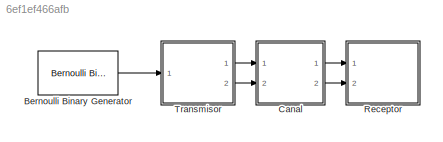
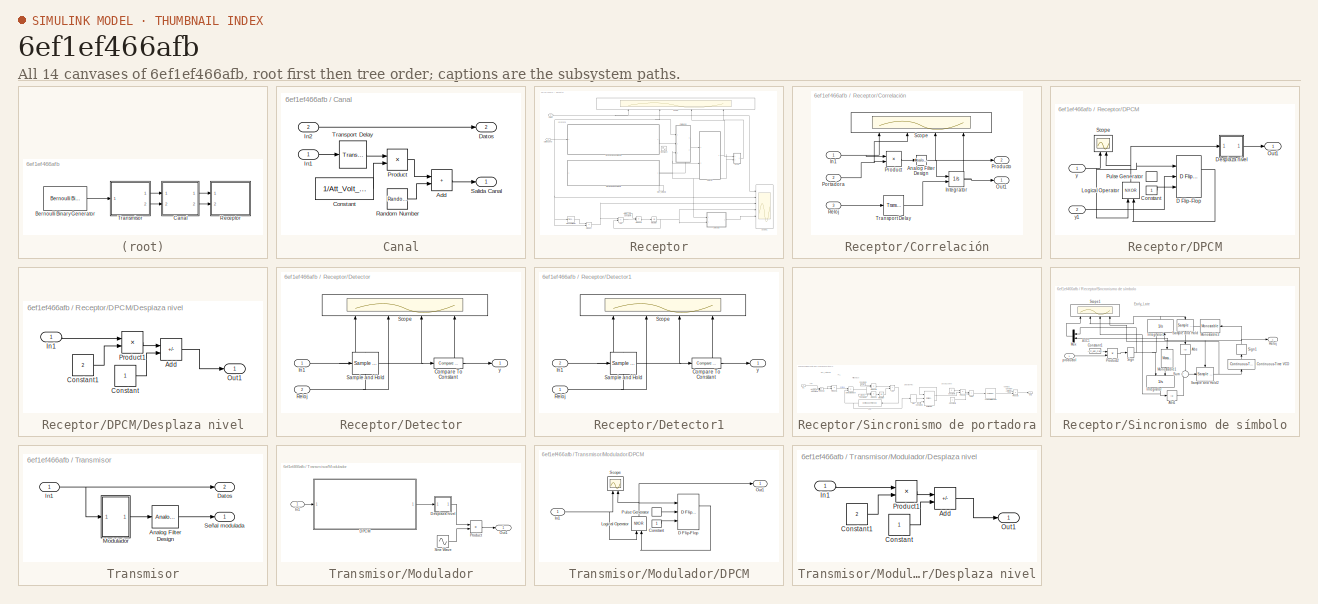
[diagram: thumbnail index - all 14 canvases of the model, root first then tree order]
MODEL slx_6ef1ef466afb
KIND model
CONFIG AbsTol = auto
CONFIG EnableMultiTasking = off
CONFIG FixedStep = 1e-8
CONFIG MaxStep = auto
CONFIG MinStep = auto
CONFIG RelTol = 1e-3
CONFIG SampleTimeConstraint = Unconstrained
CONFIG SolverName = VariableStepAuto
CONFIG StartTime = 0.0
CONFIG StopTime = 50/Rb
BLOCK [Reference] Bernoulli Binary Generator  REF=commrandsrc3/Bernoulli Binary
Generator
  Ports = [0, 1]
  SourceBlock = commrandsrc3/Bernoulli Binary\nGenerator
  SourceProductBaseCode = CM
  SourceType = Bernoulli Binary Generator
BLOCK [SubSystem] Canal
  Ports = [2, 2]
  RequestExecContextInheritance = off
BLOCK [Sum] Canal/Add
  IconShape = rectangular
  Ports = [2, 1]
BLOCK [Constant] Canal/Constant
  Value = 1/Att_Volt_Canal
BLOCK [Outport] Canal/Datos
  Port = 2
BLOCK [Inport] Canal/In1
BLOCK [Inport] Canal/In2
  Port = 2
BLOCK [Product] Canal/Product
  Ports = [2, 1]
BLOCK [RandomNumber] Canal/Random Number
  SampleTime = 1/(10000*Rb)
  Variance = Pot_Ruido
BLOCK [Outport] Canal/Salida Canal
BLOCK [TransportDelay] Canal/Transport Delay
  DelayTime = Retraso_Canal
  Ports = [1, 1]
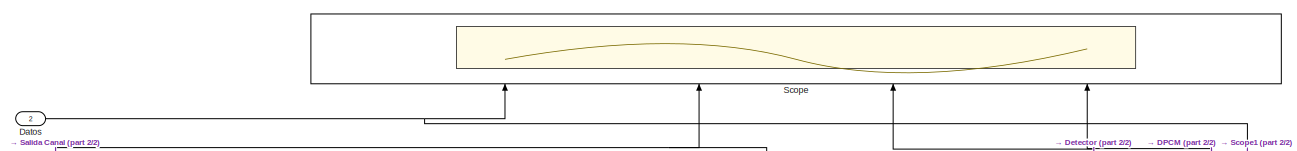
[diagram: Receptor - part 1/2, full width, top band]
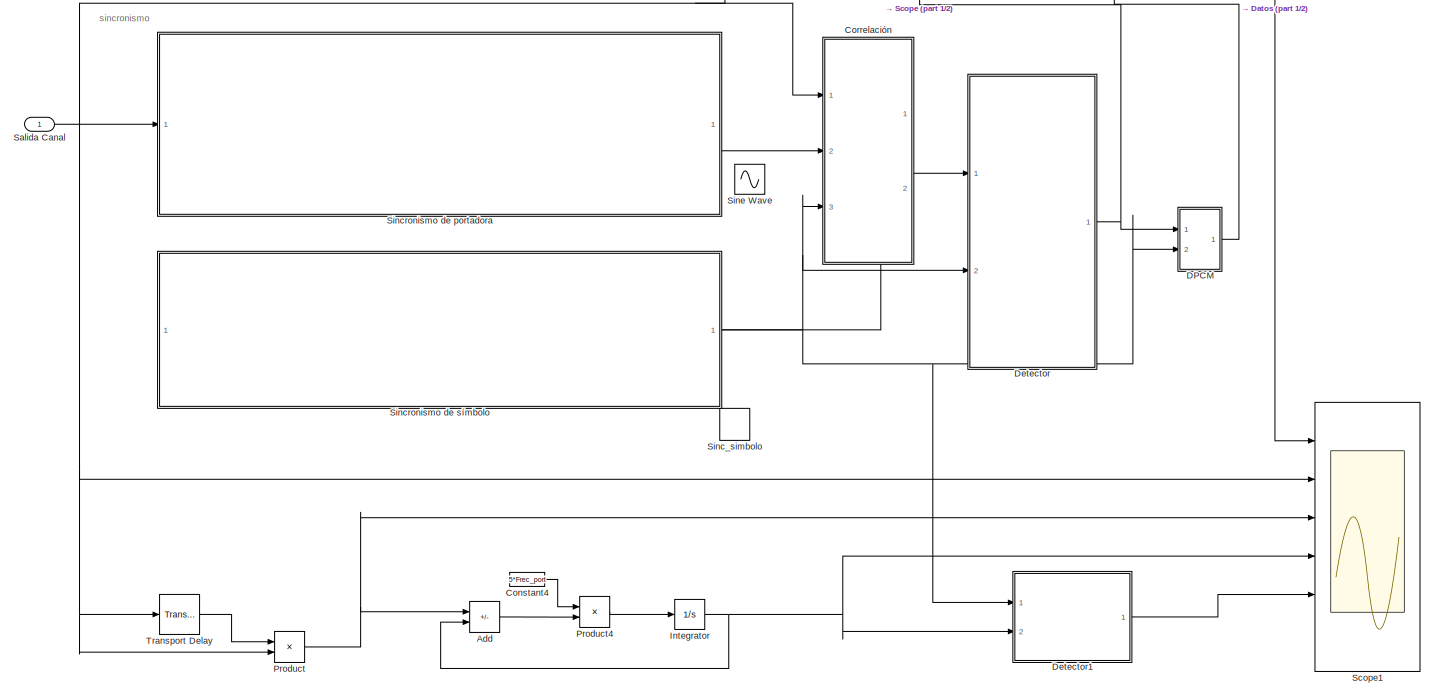
[diagram: Receptor - part 2/2, most of the canvas]
BLOCK [SubSystem] Receptor
  Ports = [2]
  RequestExecContextInheritance = off
BLOCK [Sum] Receptor/Add
  IconShape = rectangular
  Inputs = +-
  Ports = [2, 1]
BLOCK [Constant] Receptor/Constant4
  Value = 5*Frec_port
BLOCK [SubSystem] Receptor/Correlación
  NameLocation = top
  PortSchema = {"entries":[{"content":{"sides":[{"content":{"connectorIds":["In1","In2","Out2","In3"]},"type":"ConnectorPlacement.EquallySpacedRectSide","uuid":"9c9ed9ca-e8ca-44c2-a659-85a067b2e2ab"},{"content":{"connectorIds":["Out1"],"side":"RIGHT"},"type":"ConnectorPlacement.EquallySpacedRectSide","uuid":"749548a8-d339-4a18-8c47-3529cad88115"},{"content":{"connectorIds":[],"side":"TOP"},"type":"ConnectorPlace...<+403ch>
  Ports = [3, 2]
  RequestExecContextInheritance = off
BLOCK [Reference] Receptor/Correlación/Analog Filter Design  REF=dsparch4/Analog
Filter Design
  Ports = [1, 1]
  SourceBlock = dsparch4/Analog\nFilter Design
  SourceProductBaseCode = DS
  SourceType = Analog Filter Design
BLOCK [Inport] Receptor/Correlación/In1
BLOCK [Integrator] Receptor/Correlación/Integrator
  ExternalReset = rising
  Ports = [2, 1]
BLOCK [Outport] Receptor/Correlación/Out1
BLOCK [Inport] Receptor/Correlación/Portadora
  Port = 2
BLOCK [Product] Receptor/Correlación/Product
  Ports = [2, 1]
BLOCK [Outport] Receptor/Correlación/Producto
  Port = 2
BLOCK [Inport] Receptor/Correlación/Reloj
  Port = 3
BLOCK [Scope] Receptor/Correlación/Scope
  Floating = off
  NameLocation = right
  NumInputPorts = 4
  Ports = [4]
  ScopeSpecificationString = Simulink.scopes.TimeScopeBlockCfg('CurrentConfiguration', extmgr.ConfigurationSet(extmgr.Configuration('Core','General UI',true,'FigureColor',[0.831372549019608 0.815686274509804 0.784313725490196]),extmgr.Configuration('Core','Source UI',true),extmgr.Configuration('Sources','WiredSimulink',true,'DataLoggingVariableName','ScopeData4'),extmgr.Configuration('Visuals','Time Domain',true,'SerializedDi...<+4485ch>
BLOCK [TransportDelay] Receptor/Correlación/Transport Delay
  DelayTime = 1e-9
  Ports = [1, 1]
BLOCK [SubSystem] Receptor/DPCM
  Ports = [2, 1]
  RequestExecContextInheritance = off
BLOCK [Constant] Receptor/DPCM/Constant
BLOCK [Reference] Receptor/DPCM/D Flip-Flop  REF=simulink_extras/Flip Flops/D Flip-Flop
  Ports = [3, 2]
  SourceBlock = simulink_extras/Flip Flops/D Flip-Flop
  SourceProductBaseCode = SL
  SourceType = DFlipFlop
BLOCK [SubSystem] Receptor/DPCM/Desplaza nivel
  Commented = through
  Ports = [1, 1]
  RequestExecContextInheritance = off
BLOCK [Sum] Receptor/DPCM/Desplaza nivel/Add
  IconShape = rectangular
  Inputs = +-
  Ports = [2, 1]
BLOCK [Constant] Receptor/DPCM/Desplaza nivel/Constant
BLOCK [Constant] Receptor/DPCM/Desplaza nivel/Constant1
  Value = 2
BLOCK [Inport] Receptor/DPCM/Desplaza nivel/In1
BLOCK [Outport] Receptor/DPCM/Desplaza nivel/Out1
BLOCK [Product] Receptor/DPCM/Desplaza nivel/Product1
  Ports = [2, 1]
BLOCK [Logic] Receptor/DPCM/Logical Operator
  AllPortsSameDT = off
  NameLocation = right
  Operator = NXOR
  OutDataTypeStr = boolean
  Ports = [2, 1]
BLOCK [Outport] Receptor/DPCM/Out1
BLOCK [DiscretePulseGenerator] Receptor/DPCM/Pulse Generator
  Period = Tb
  Ports = [0, 1]
  PulseType = Time based
BLOCK [Scope] Receptor/DPCM/Scope
  Floating = off
  NameLocation = right
  NumInputPorts = 2
  Ports = [2]
  ScopeSpecificationString = Simulink.scopes.TimeScopeBlockCfg('CurrentConfiguration', extmgr.ConfigurationSet(extmgr.Configuration('Core','General UI',true),extmgr.Configuration('Core','Source UI',true),extmgr.Configuration('Sources','WiredSimulink',true,'DataLoggingVariableName','ScopeData1'),extmgr.Configuration('Visuals','Time Domain',true,'SerializedDisplays',{struct('MinYLimReal','-0.125','MaxYLimReal','1.125','YLabelRe...<+2470ch>
BLOCK [Inport] Receptor/DPCM/y
BLOCK [Inport] Receptor/DPCM/y1
  Port = 2
BLOCK [Inport] Receptor/Datos
  Port = 2
BLOCK [SubSystem] Receptor/Detector
  Ports = [2, 1]
  RequestExecContextInheritance = off
BLOCK [Reference] Receptor/Detector/Compare To Constant  REF=simulink/Logic and Bit
Operations/Compare
To Constant
  Ports = [1, 1]
  SourceBlock = simulink/Logic and Bit\nOperations/Compare\nTo Constant
  SourceProductBaseCode = SL
  SourceType = Compare To Constant
BLOCK [Inport] Receptor/Detector/In1
BLOCK [Inport] Receptor/Detector/Reloj
  Port = 2
BLOCK [Reference] Receptor/Detector/Sample and Hold  REF=dspsigops/Sample
and Hold
  NameLocation = top
  Ports = [1, 1, 0, 1]
  SourceBlock = dspsigops/Sample\nand Hold
  SourceProductBaseCode = DS
  SourceType = Sample and Hold
BLOCK [Scope] Receptor/Detector/Scope
  Floating = off
  NameLocation = right
  NumInputPorts = 4
  Ports = [4]
  ScopeSpecificationString = Simulink.scopes.TimeScopeBlockCfg('CurrentConfiguration', extmgr.ConfigurationSet(extmgr.Configuration('Core','General UI',true,'FigureColor',[0.831372549019608 0.815686274509804 0.784313725490196]),extmgr.Configuration('Core','Source UI',true),extmgr.Configuration('Sources','WiredSimulink',true,'DataLoggingVariableName','ScopeData5'),extmgr.Configuration('Visuals','Time Domain',true,'SerializedDi...<+4149ch>
BLOCK [Outport] Receptor/Detector/y
BLOCK [SubSystem] Receptor/Detector1
  Ports = [2, 1]
  RequestExecContextInheritance = off
BLOCK [Reference] Receptor/Detector1/Compare To Constant  REF=simulink/Logic and Bit
Operations/Compare
To Constant
  Ports = [1, 1]
  SourceBlock = simulink/Logic and Bit\nOperations/Compare\nTo Constant
  SourceProductBaseCode = SL
  SourceType = Compare To Constant
BLOCK [Inport] Receptor/Detector1/In1
  Port = 2
BLOCK [Inport] Receptor/Detector1/Reloj
BLOCK [Reference] Receptor/Detector1/Sample and Hold  REF=dspsigops/Sample
and Hold
  NameLocation = top
  Ports = [1, 1, 0, 1]
  SourceBlock = dspsigops/Sample\nand Hold
  SourceProductBaseCode = DS
  SourceType = Sample and Hold
BLOCK [Scope] Receptor/Detector1/Scope
  Floating = off
  NameLocation = right
  NumInputPorts = 4
  Ports = [4]
  ScopeSpecificationString = Simulink.scopes.TimeScopeBlockCfg('CurrentConfiguration', extmgr.ConfigurationSet(extmgr.Configuration('Core','General UI',true,'FigureColor',[0.831372549019608 0.815686274509804 0.784313725490196]),extmgr.Configuration('Core','Source UI',true),extmgr.Configuration('Sources','WiredSimulink',true,'DataLoggingVariableName','ScopeData5'),extmgr.Configuration('Visuals','Time Domain',true,'SerializedDi...<+4137ch>
BLOCK [Outport] Receptor/Detector1/y
BLOCK [Integrator] Receptor/Integrator
  Ports = [1, 1]
BLOCK [Product] Receptor/Product
  Ports = [2, 1]
BLOCK [Product] Receptor/Product4
  Ports = [2, 1]
BLOCK [Inport] Receptor/Salida Canal
BLOCK [Scope] Receptor/Scope
  Floating = off
  NameLocation = right
  NumInputPorts = 4
  Ports = [4]
  ScopeSpecificationString = Simulink.scopes.TimeScopeBlockCfg('CurrentConfiguration', extmgr.ConfigurationSet(extmgr.Configuration('Core','General UI',true,'FigureColor',[0.831372549019608 0.815686274509804 0.784313725490196]),extmgr.Configuration('Core','Source UI',true),extmgr.Configuration('Sources','WiredSimulink',true,'DataLoggingVariableName','ScopeData2'),extmgr.Configuration('Visuals','Time Domain',true,'SerializedDi...<+4321ch>
BLOCK [Scope] Receptor/Scope1
  Floating = off
  NumInputPorts = 6
  Ports = [6]
  ScopeSpecificationString = Simulink.scopes.TimeScopeBlockCfg('CurrentConfiguration', extmgr.ConfigurationSet(extmgr.Configuration('Core','General UI',true),extmgr.Configuration('Core','Source UI',true),extmgr.Configuration('Sources','WiredSimulink',true,'DataLoggingVariableName','ScopeData1'),extmgr.Configuration('Visuals','Time Domain',true,'SerializedDisplays',{struct('MinYLimReal','-0.125','MaxYLimReal','1.125','YLabelRe...<+6262ch>
BLOCK [DiscretePulseGenerator] Receptor/Sinc_simbolo
  Amplitude = Amplitud
  Period = 1/Rb
  Ports = [0, 1]
  PulseType = Time based
  PulseWidth = 50
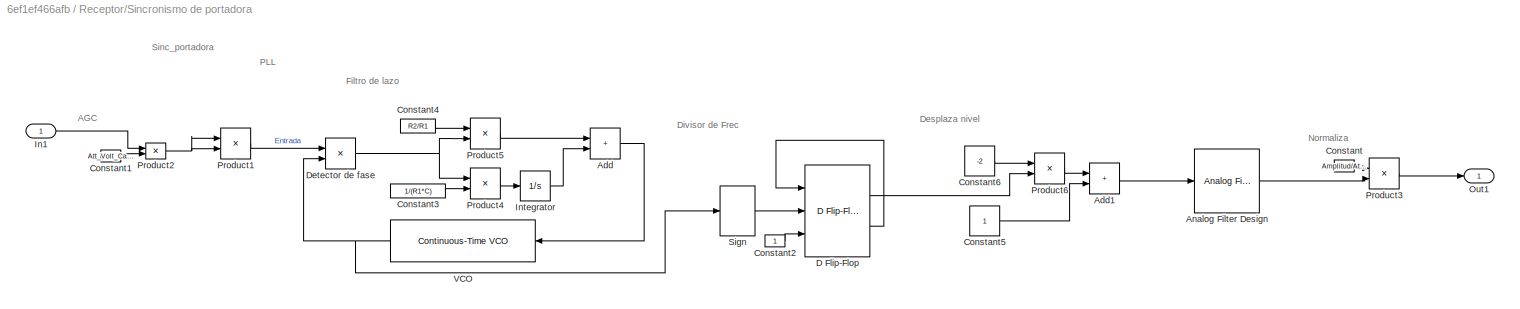
BLOCK [SubSystem] Receptor/Sincronismo de portadora
  Ports = [1, 1]
  RequestExecContextInheritance = off
BLOCK [Reference] Receptor/Sincronismo de portadora/ VCO  REF=commsynccomp2/Continuous-Time
VCO
  NameLocation = top
  Ports = [1, 1]
  SourceBlock = commsynccomp2/Continuous-Time\nVCO
  SourceProductBaseCode = CM
  SourceType = Continuous-Time VCO
BLOCK [Sum] Receptor/Sincronismo de portadora/Add
  IconShape = rectangular
  Ports = [2, 1]
BLOCK [Sum] Receptor/Sincronismo de portadora/Add1
  IconShape = rectangular
  Ports = [2, 1]
BLOCK [Reference] Receptor/Sincronismo de portadora/Analog Filter Design  REF=dsparch4/Analog
Filter Design
  Ports = [1, 1]
  SourceBlock = dsparch4/Analog\nFilter Design
  SourceProductBaseCode = DS
  SourceType = Analog Filter Design
BLOCK [Constant] Receptor/Sincronismo de portadora/Constant
  Value = Amplitud/Att_Volt_Canal
BLOCK [Constant] Receptor/Sincronismo de portadora/Constant1
  Value = Att_Volt_Canal/Amplitud
BLOCK [Constant] Receptor/Sincronismo de portadora/Constant2
BLOCK [Constant] Receptor/Sincronismo de portadora/Constant3
  Value = 1/(R1*C)
BLOCK [Constant] Receptor/Sincronismo de portadora/Constant4
  Value = R2/R1
BLOCK [Constant] Receptor/Sincronismo de portadora/Constant5
BLOCK [Constant] Receptor/Sincronismo de portadora/Constant6
  Value = -2
BLOCK [Reference] Receptor/Sincronismo de portadora/D Flip-Flop  REF=simulink_extras/Flip Flops/D Flip-Flop
  Ports = [3, 2]
  SourceBlock = simulink_extras/Flip Flops/D Flip-Flop
  SourceProductBaseCode = SL
  SourceType = DFlipFlop
BLOCK [Product] Receptor/Sincronismo de portadora/Detector de fase
  Ports = [2, 1]
BLOCK [Inport] Receptor/Sincronismo de portadora/In1
BLOCK [Integrator] Receptor/Sincronismo de portadora/Integrator
  Ports = [1, 1]
BLOCK [Outport] Receptor/Sincronismo de portadora/Out1
BLOCK [Product] Receptor/Sincronismo de portadora/Product1
  Ports = [2, 1]
BLOCK [Product] Receptor/Sincronismo de portadora/Product2
  Ports = [2, 1]
BLOCK [Product] Receptor/Sincronismo de portadora/Product3
  Ports = [2, 1]
BLOCK [Product] Receptor/Sincronismo de portadora/Product4
  Ports = [2, 1]
BLOCK [Product] Receptor/Sincronismo de portadora/Product5
  Ports = [2, 1]
BLOCK [Product] Receptor/Sincronismo de portadora/Product6
  Ports = [2, 1]
BLOCK [Signum] Receptor/Sincronismo de portadora/Sign
BLOCK [SubSystem] Receptor/Sincronismo de símbolo
  PortSchema = {"entries":[{"content":{"sides":[{"content":{"connectorIds":[]},"type":"ConnectorPlacement.EquallySpacedRectSide","uuid":"93994b0c-b2cb-4331-9695-4cda4bbb6019"},{"content":{"connectorIds":["In1","Out1"],"side":"RIGHT"},"type":"ConnectorPlacement.EquallySpacedRectSide","uuid":"b8064540-0ede-4985-840d-1e59709fa35b"},{"content":{"connectorIds":[],"side":"TOP"},"type":"ConnectorPlacement.EquallySpaced...<+241ch>
  Ports = [1, 1]
  RequestExecContextInheritance = off
BLOCK [Abs] Receptor/Sincronismo de símbolo/Abs
  NameLocation = right
  SaturateOnIntegerOverflow = off
BLOCK [Abs] Receptor/Sincronismo de símbolo/Abs1
  SaturateOnIntegerOverflow = off
BLOCK [Constant] Receptor/Sincronismo de símbolo/Constant1
  Value = Att_pot_Canal/(Amplitud^2)
BLOCK [Reference] Receptor/Sincronismo de símbolo/Continuous-Time VCO  REF=commsynccomp2/Continuous-Time
VCO
  NameLocation = left
  Ports = [1, 1]
  SourceBlock = commsynccomp2/Continuous-Time\nVCO
  SourceProductBaseCode = CM
  SourceType = Continuous-Time VCO
BLOCK [Integrator] Receptor/Sincronismo de símbolo/Integrator
  ExternalReset = falling
  LowerSaturationLimit = -0.7e-4
  NameLocation = left
  Ports = [2, 1]
  UpperSaturationLimit = 0.7e-4
BLOCK [Integrator] Receptor/Sincronismo de símbolo/Integrator1
  ExternalReset = rising
  LowerSaturationLimit = -0.7e-4
  NameLocation = right
  Ports = [2, 1]
  UpperSaturationLimit = 0.7e-4
BLOCK [Reference] Receptor/Sincronismo de símbolo/Monostable1  REF=powerlib_extras/Control 
Blocks/Monostable
  NameLocation = left
  Ports = [1, 1]
  SourceBlock = powerlib_extras/Control \nBlocks/Monostable
  SourceProductBaseCode = PS
  SourceType = Monostable Flip-Flop
BLOCK [Reference] Receptor/Sincronismo de símbolo/Monostable3  REF=powerlib_extras/Control 
Blocks/Monostable
  Ports = [1, 1]
  SourceBlock = powerlib_extras/Control \nBlocks/Monostable
  SourceProductBaseCode = PS
  SourceType = Monostable Flip-Flop
BLOCK [Mux] Receptor/Sincronismo de símbolo/Mux
  DisplayOption = bar
  Inputs = 2
  Ports = [2, 1]
BLOCK [Product] Receptor/Sincronismo de símbolo/Product2
  Ports = [2, 1]
BLOCK [Outport] Receptor/Sincronismo de símbolo/Reloj
BLOCK [Reference] Receptor/Sincronismo de símbolo/Sample and Hold  REF=dspsigops/Sample
and Hold
  NameLocation = left
  Ports = [1, 1, 0, 1]
  SourceBlock = dspsigops/Sample\nand Hold
  SourceProductBaseCode = DS
  SourceType = Sample and Hold
BLOCK [Reference] Receptor/Sincronismo de símbolo/Sample and Hold2  REF=dspsigops/Sample
and Hold
  Ports = [1, 1, 0, 1]
  SourceBlock = dspsigops/Sample\nand Hold
  SourceProductBaseCode = DS
  SourceType = Sample and Hold
BLOCK [Scope] Receptor/Sincronismo de símbolo/Scope1
  Floating = off
  NameLocation = right
  NumInputPorts = 4
  Ports = [4]
  ScopeSpecificationString = Simulink.scopes.TimeScopeBlockCfg('CurrentConfiguration', extmgr.ConfigurationSet(extmgr.Configuration('Core','General UI',true,'FigureColor',[0.831372549019608 0.815686274509804 0.784313725490196]),extmgr.Configuration('Core','Source UI',true),extmgr.Configuration('Sources','WiredSimulink',true,'DataLoggingVariableName','ScopeData1'),extmgr.Configuration('Visuals','Time Domain',true,'SerializedDi...<+4414ch>
BLOCK [Signum] Receptor/Sincronismo de símbolo/Sign
BLOCK [Signum] Receptor/Sincronismo de símbolo/Sign1
  NameLocation = right
BLOCK [Sum] Receptor/Sincronismo de símbolo/Sum
  Inputs = +-
  Ports = [2, 1]
BLOCK [Inport] Receptor/Sincronismo de símbolo/productol
BLOCK [Sin] Receptor/Sine Wave
  Amplitude = Amplitud/Att_Volt_Canal
  Frequency = 2*pi*Frec_port
  Ports = [0, 1]
  SampleTime = 0
BLOCK [TransportDelay] Receptor/Transport Delay
  DelayTime = Tb
  Ports = [1, 1]
BLOCK [SubSystem] Transmisor
  Ports = [1, 2]
  RequestExecContextInheritance = off
BLOCK [Reference] Transmisor/Analog Filter Design  REF=dsparch4/Analog
Filter Design
  Ports = [1, 1]
  SourceBlock = dsparch4/Analog\nFilter Design
  SourceProductBaseCode = DS
  SourceType = Analog Filter Design
BLOCK [Outport] Transmisor/Datos
  Port = 2
BLOCK [Inport] Transmisor/In1
BLOCK [SubSystem] Transmisor/Modulador
  Ports = [1, 1]
  RequestExecContextInheritance = off
BLOCK [SubSystem] Transmisor/Modulador/DPCM
  Ports = [1, 1]
  RequestExecContextInheritance = off
BLOCK [Constant] Transmisor/Modulador/DPCM/Constant
BLOCK [Reference] Transmisor/Modulador/DPCM/D Flip-Flop  REF=simulink_extras/Flip Flops/D Flip-Flop
  Ports = [3, 2]
  SourceBlock = simulink_extras/Flip Flops/D Flip-Flop
  SourceProductBaseCode = SL
  SourceType = DFlipFlop
BLOCK [Inport] Transmisor/Modulador/DPCM/In1
BLOCK [Logic] Transmisor/Modulador/DPCM/Logical Operator
  AllPortsSameDT = off
  NameLocation = right
  Operator = NXOR
  OutDataTypeStr = boolean
  Ports = [2, 1]
BLOCK [Outport] Transmisor/Modulador/DPCM/Out1
BLOCK [DiscretePulseGenerator] Transmisor/Modulador/DPCM/Pulse Generator
  Period = Tb
  Ports = [0, 1]
  PulseType = Time based
  PulseWidth = 50
BLOCK [Scope] Transmisor/Modulador/DPCM/Scope
  Floating = off
  NameLocation = right
  NumInputPorts = 2
  Ports = [2]
  ScopeSpecificationString = Simulink.scopes.TimeScopeBlockCfg('CurrentConfiguration', extmgr.ConfigurationSet(extmgr.Configuration('Core','General UI',true),extmgr.Configuration('Core','Source UI',true),extmgr.Configuration('Sources','WiredSimulink',true,'DataLoggingVariableName','ScopeData1'),extmgr.Configuration('Visuals','Time Domain',true,'SerializedDisplays',{struct('MinYLimReal','-0.125','MaxYLimReal','1.125','YLabelRe...<+2478ch>
BLOCK [SubSystem] Transmisor/Modulador/Desplaza nivel
  Ports = [1, 1]
  RequestExecContextInheritance = off
BLOCK [Sum] Transmisor/Modulador/Desplaza nivel/Add
  IconShape = rectangular
  Inputs = +-
  Ports = [2, 1]
BLOCK [Constant] Transmisor/Modulador/Desplaza nivel/Constant
BLOCK [Constant] Transmisor/Modulador/Desplaza nivel/Constant1
  Value = 2
BLOCK [Inport] Transmisor/Modulador/Desplaza nivel/In1
BLOCK [Outport] Transmisor/Modulador/Desplaza nivel/Out1
BLOCK [Product] Transmisor/Modulador/Desplaza nivel/Product1
  Ports = [2, 1]
BLOCK [Inport] Transmisor/Modulador/In1
BLOCK [Outport] Transmisor/Modulador/Out1
BLOCK [Product] Transmisor/Modulador/Product
  Ports = [2, 1]
BLOCK [Sin] Transmisor/Modulador/Sine Wave
  Amplitude = Amplitud
  Frequency = 2*pi*(Frec_port)
  Ports = [0, 1]
  SampleTime = 0
BLOCK [Outport] Transmisor/Señal modulada
ANNOTATION Receptor: sincronismo
ANNOTATION Receptor/Sincronismo de portadora: AGC
ANNOTATION Receptor/Sincronismo de portadora: Desplaza nivel
ANNOTATION Receptor/Sincronismo de portadora: Divisor de Frec
ANNOTATION Receptor/Sincronismo de portadora: Filtro de lazo
ANNOTATION Receptor/Sincronismo de portadora: Normaliza
ANNOTATION Receptor/Sincronismo de portadora: PLL
ANNOTATION Receptor/Sincronismo de portadora: Sinc_portadora
ANNOTATION Receptor/Sincronismo de símbolo: AGC1
ANNOTATION Receptor/Sincronismo de símbolo: Early_Late
LINE Bernoulli Binary Generator:1 -> Transmisor:1
LINE Canal/Add:1 -> Canal/Salida Canal:1
LINE Canal/Constant:1 -> Canal/Product:2
LINE Canal/In1:1 -> Canal/Transport Delay:1
LINE Canal/In2:1 -> Canal/Datos:1
LINE Canal/Product:1 -> Canal/Add:1
LINE Canal/Random Number:1 -> Canal/Add:2
LINE Canal/Transport Delay:1 -> Canal/Product:1
LINE Canal:1 -> Receptor:1
LINE Canal:2 -> Receptor:2
LINE Receptor/Add:1 -> Receptor/Product4:2
LINE Receptor/Constant4:1 -> Receptor/Product4:1
NET Receptor/Correlación/Analog Filter Design:1 -> Receptor/Correlación/Integrator:1, Receptor/Correlación/Producto:1, Receptor/Correlación/Scope:3
NET Receptor/Correlación/In1:1 -> Receptor/Correlación/Product:1, Receptor/Correlación/Scope:1
NET Receptor/Correlación/Integrator:1 -> Receptor/Correlación/Out1:1, Receptor/Correlación/Scope:4
NET Receptor/Correlación/Portadora:1 -> Receptor/Correlación/Product:2, Receptor/Correlación/Scope:2
LINE Receptor/Correlación/Product:1 -> Receptor/Correlación/Analog Filter Design:1
LINE Receptor/Correlación/Reloj:1 -> Receptor/Correlación/Transport Delay:1
LINE Receptor/Correlación/Transport Delay:1 -> Receptor/Correlación/Integrator:2
LINE Receptor/Correlación:1 -> Receptor/Detector:1
LINE Receptor/Correlación:2 -> Receptor/Sincronismo de símbolo:1
LINE Receptor/DPCM/Constant:1 -> Receptor/DPCM/D Flip-Flop:3
LINE Receptor/DPCM/D Flip-Flop:1 -> Receptor/DPCM/Logical Operator:2
LINE Receptor/DPCM/Desplaza nivel/Add:1 -> Receptor/DPCM/Desplaza nivel/Out1:1
LINE Receptor/DPCM/Desplaza nivel/Constant1:1 -> Receptor/DPCM/Desplaza nivel/Product1:2
LINE Receptor/DPCM/Desplaza nivel/Constant:1 -> Receptor/DPCM/Desplaza nivel/Add:2
LINE Receptor/DPCM/Desplaza nivel/In1:1 -> Receptor/DPCM/Desplaza nivel/Product1:1
LINE Receptor/DPCM/Desplaza nivel/Product1:1 -> Receptor/DPCM/Desplaza nivel/Add:1
LINE Receptor/DPCM/Desplaza nivel:1 -> Receptor/DPCM/Out1:1
NET Receptor/DPCM/Logical Operator:1 -> Receptor/DPCM/Desplaza nivel:1, Receptor/DPCM/Scope:2
LINE Receptor/DPCM/y1:1 -> Receptor/DPCM/D Flip-Flop:2
NET Receptor/DPCM/y:1 -> Receptor/DPCM/D Flip-Flop:1, Receptor/DPCM/Logical Operator:1, Receptor/DPCM/Scope:1
LINE Receptor/DPCM:1 -> Receptor/Scope:4
NET Receptor/Datos:1 -> Receptor/Scope1:1, Receptor/Scope:1
NET Receptor/Detector/Compare To Constant:1 -> Receptor/Detector/Scope:4, Receptor/Detector/y:1
NET Receptor/Detector/In1:1 -> Receptor/Detector/Sample and Hold:1, Receptor/Detector/Scope:1
NET Receptor/Detector/Reloj:1 -> Receptor/Detector/Sample and Hold:trigger, Receptor/Detector/Scope:2
NET Receptor/Detector/Sample and Hold:1 -> Receptor/Detector/Compare To Constant:1, Receptor/Detector/Scope:3
NET Receptor/Detector1/Compare To Constant:1 -> Receptor/Detector1/Scope:4, Receptor/Detector1/y:1
NET Receptor/Detector1/In1:1 -> Receptor/Detector1/Sample and Hold:1, Receptor/Detector1/Scope:1
NET Receptor/Detector1/Reloj:1 -> Receptor/Detector1/Sample and Hold:trigger, Receptor/Detector1/Scope:2
NET Receptor/Detector1/Sample and Hold:1 -> Receptor/Detector1/Compare To Constant:1, Receptor/Detector1/Scope:3
LINE Receptor/Detector1:1 -> Receptor/Scope1:5
NET Receptor/Detector:1 -> Receptor/DPCM:1, Receptor/Scope:3
NET Receptor/Integrator:1 -> Receptor/Add:2, Receptor/Detector1:2, Receptor/Scope1:4
LINE Receptor/Product4:1 -> Receptor/Integrator:1
NET Receptor/Product:1 -> Receptor/Add:1, Receptor/Scope1:3
NET Receptor/Salida Canal:1 -> Receptor/Correlación:1, Receptor/Product:2, Receptor/Scope1:2, Receptor/Scope:2, Receptor/Sincronismo de portadora:1, Receptor/Transport Delay:1
NET Receptor/Sincronismo de portadora/ VCO:1 -> Receptor/Sincronismo de portadora/Detector de fase:2, Receptor/Sincronismo de portadora/Sign:1
LINE Receptor/Sincronismo de portadora/Add1:1 -> Receptor/Sincronismo de portadora/Analog Filter Design:1
LINE Receptor/Sincronismo de portadora/Add:1 -> Receptor/Sincronismo de portadora/ VCO:1
LINE Receptor/Sincronismo de portadora/Analog Filter Design:1 -> Receptor/Sincronismo de portadora/Product3:2
LINE Receptor/Sincronismo de portadora/Constant1:1 -> Receptor/Sincronismo de portadora/Product2:2
LINE Receptor/Sincronismo de portadora/Constant2:1 -> Receptor/Sincronismo de portadora/D Flip-Flop:3
LINE Receptor/Sincronismo de portadora/Constant3:1 -> Receptor/Sincronismo de portadora/Product4:2
LINE Receptor/Sincronismo de portadora/Constant4:1 -> Receptor/Sincronismo de portadora/Product5:1
LINE Receptor/Sincronismo de portadora/Constant5:1 -> Receptor/Sincronismo de portadora/Add1:2
LINE Receptor/Sincronismo de portadora/Constant6:1 -> Receptor/Sincronismo de portadora/Product6:1
LINE Receptor/Sincronismo de portadora/Constant:1 -> Receptor/Sincronismo de portadora/Product3:1
LINE Receptor/Sincronismo de portadora/D Flip-Flop:1 -> Receptor/Sincronismo de portadora/Product6:2
LINE Receptor/Sincronismo de portadora/D Flip-Flop:2 -> Receptor/Sincronismo de portadora/D Flip-Flop:1
NET Receptor/Sincronismo de portadora/Detector de fase:1 -> Receptor/Sincronismo de portadora/Product4:1, Receptor/Sincronismo de portadora/Product5:2
LINE Receptor/Sincronismo de portadora/In1:1 -> Receptor/Sincronismo de portadora/Product2:1
LINE Receptor/Sincronismo de portadora/Integrator:1 -> Receptor/Sincronismo de portadora/Add:2
LINE Receptor/Sincronismo de portadora/Product1:1 -> Receptor/Sincronismo de portadora/Detector de fase:1
NET Receptor/Sincronismo de portadora/Product2:1 -> Receptor/Sincronismo de portadora/Product1:1, Receptor/Sincronismo de portadora/Product1:2
LINE Receptor/Sincronismo de portadora/Product3:1 -> Receptor/Sincronismo de portadora/Out1:1
LINE Receptor/Sincronismo de portadora/Product4:1 -> Receptor/Sincronismo de portadora/Integrator:1
LINE Receptor/Sincronismo de portadora/Product5:1 -> Receptor/Sincronismo de portadora/Add:1
LINE Receptor/Sincronismo de portadora/Product6:1 -> Receptor/Sincronismo de portadora/Add1:1
LINE Receptor/Sincronismo de portadora/Sign:1 -> Receptor/Sincronismo de portadora/D Flip-Flop:2
LINE Receptor/Sincronismo de portadora:1 -> Receptor/Correlación:2
LINE Receptor/Sincronismo de símbolo/Abs1:1 -> Receptor/Sincronismo de símbolo/Sum:2
LINE Receptor/Sincronismo de símbolo/Abs:1 -> Receptor/Sincronismo de símbolo/Sum:1
LINE Receptor/Sincronismo de símbolo/Constant1:1 -> Receptor/Sincronismo de símbolo/Product2:1
LINE Receptor/Sincronismo de símbolo/Continuous-Time VCO:1 -> Receptor/Sincronismo de símbolo/Sign1:1
NET Receptor/Sincronismo de símbolo/Integrator1:1 -> Receptor/Sincronismo de símbolo/Sample and Hold:1, Receptor/Sincronismo de símbolo/Scope1:2
NET Receptor/Sincronismo de símbolo/Integrator:1 -> Receptor/Sincronismo de símbolo/Abs1:1, Receptor/Sincronismo de símbolo/Scope1:3
LINE Receptor/Sincronismo de símbolo/Monostable1:1 -> Receptor/Sincronismo de símbolo/Integrator:2
LINE Receptor/Sincronismo de símbolo/Monostable3:1 -> Receptor/Sincronismo de símbolo/Sample and Hold:trigger
LINE Receptor/Sincronismo de símbolo/Mux:1 -> Receptor/Sincronismo de símbolo/Scope1:1
LINE Receptor/Sincronismo de símbolo/Product2:1 -> Receptor/Sincronismo de símbolo/Sign:1
NET Receptor/Sincronismo de símbolo/Sample and Hold2:1 -> Receptor/Sincronismo de símbolo/Continuous-Time VCO:1, Receptor/Sincronismo de símbolo/Scope1:4
LINE Receptor/Sincronismo de símbolo/Sample and Hold:1 -> Receptor/Sincronismo de símbolo/Abs:1
NET Receptor/Sincronismo de símbolo/Sign1:1 -> Receptor/Sincronismo de símbolo/Integrator1:2, Receptor/Sincronismo de símbolo/Monostable1:1, Receptor/Sincronismo de símbolo/Monostable3:1, Receptor/Sincronismo de símbolo/Mux:2, Receptor/Sincronismo de símbolo/Reloj:1, Receptor/Sincronismo de símbolo/Sample and Hold2:trigger
NET Receptor/Sincronismo de símbolo/Sign:1 -> Receptor/Sincronismo de símbolo/Integrator1:1, Receptor/Sincronismo de símbolo/Integrator:1, Receptor/Sincronismo de símbolo/Mux:1
LINE Receptor/Sincronismo de símbolo/Sum:1 -> Receptor/Sincronismo de símbolo/Sample and Hold2:1
LINE Receptor/Sincronismo de símbolo/productol:1 -> Receptor/Sincronismo de símbolo/Product2:2
NET Receptor/Sincronismo de símbolo:1 -> Receptor/Correlación:3, Receptor/DPCM:2, Receptor/Detector1:1, Receptor/Detector:2
LINE Receptor/Transport Delay:1 -> Receptor/Product:1
LINE Transmisor/Analog Filter Design:1 -> Transmisor/Señal modulada:1
NET Transmisor/In1:1 -> Transmisor/Datos:1, Transmisor/Modulador:1
LINE Transmisor/Modulador/DPCM/Constant:1 -> Transmisor/Modulador/DPCM/D Flip-Flop:3
LINE Transmisor/Modulador/DPCM/D Flip-Flop:1 -> Transmisor/Modulador/DPCM/Logical Operator:2
NET Transmisor/Modulador/DPCM/In1:1 -> Transmisor/Modulador/DPCM/Logical Operator:1, Transmisor/Modulador/DPCM/Scope:1
NET Transmisor/Modulador/DPCM/Logical Operator:1 -> Transmisor/Modulador/DPCM/D Flip-Flop:1, Transmisor/Modulador/DPCM/Out1:1, Transmisor/Modulador/DPCM/Scope:2
LINE Transmisor/Modulador/DPCM/Pulse Generator:1 -> Transmisor/Modulador/DPCM/D Flip-Flop:2
LINE Transmisor/Modulador/DPCM:1 -> Transmisor/Modulador/Desplaza nivel:1
LINE Transmisor/Modulador/Desplaza nivel/Add:1 -> Transmisor/Modulador/Desplaza nivel/Out1:1
LINE Transmisor/Modulador/Desplaza nivel/Constant1:1 -> Transmisor/Modulador/Desplaza nivel/Product1:2
LINE Transmisor/Modulador/Desplaza nivel/Constant:1 -> Transmisor/Modulador/Desplaza nivel/Add:2
LINE Transmisor/Modulador/Desplaza nivel/In1:1 -> Transmisor/Modulador/Desplaza nivel/Product1:1
LINE Transmisor/Modulador/Desplaza nivel/Product1:1 -> Transmisor/Modulador/Desplaza nivel/Add:1
LINE Transmisor/Modulador/Desplaza nivel:1 -> Transmisor/Modulador/Product:1
LINE Transmisor/Modulador/In1:1 -> Transmisor/Modulador/DPCM:1
LINE Transmisor/Modulador/Product:1 -> Transmisor/Modulador/Out1:1
LINE Transmisor/Modulador/Sine Wave:1 -> Transmisor/Modulador/Product:2
LINE Transmisor/Modulador:1 -> Transmisor/Analog Filter Design:1
LINE Transmisor:1 -> Canal:1
LINE Transmisor:2 -> Canal:2
note: NET lines group one-source signal fan-out (src -> all destinations, sorted); 1:1 wires keep LINE
